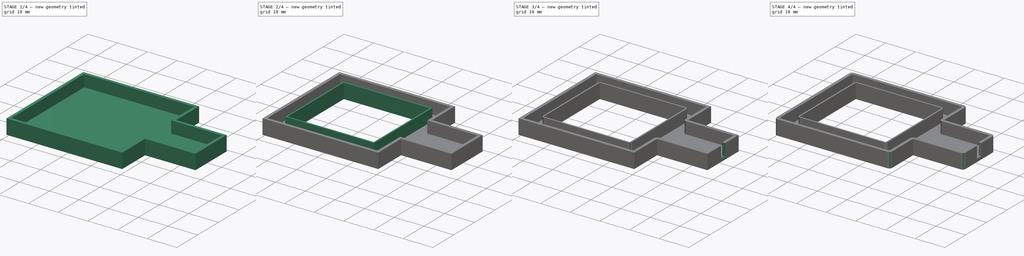
[diagram: build sequence overview — one tinted view per stage of 4, left to right]
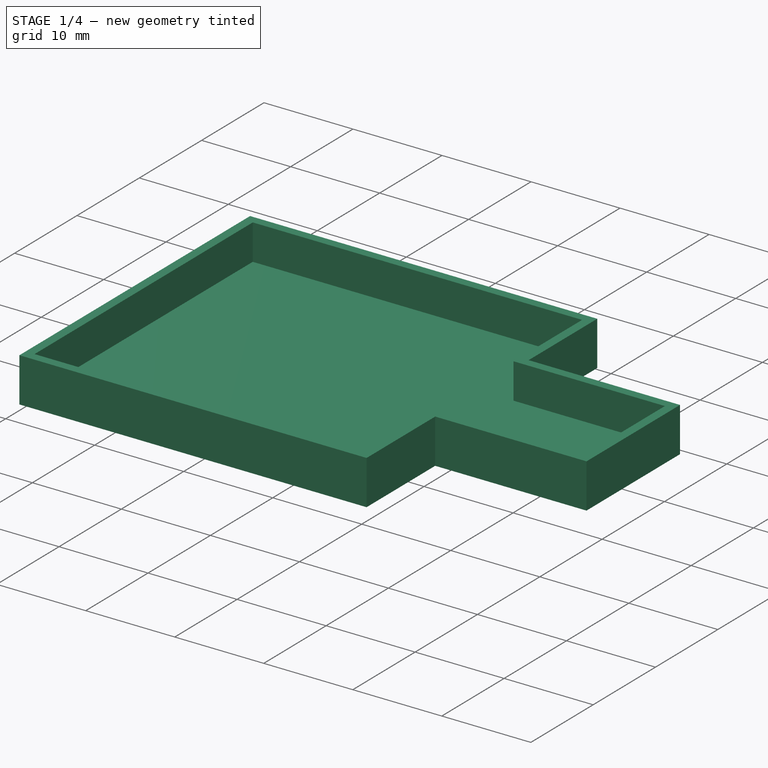
[diagram: stage 1 of 4 — iso view after this stage's code; geometry added in this stage tinted green]
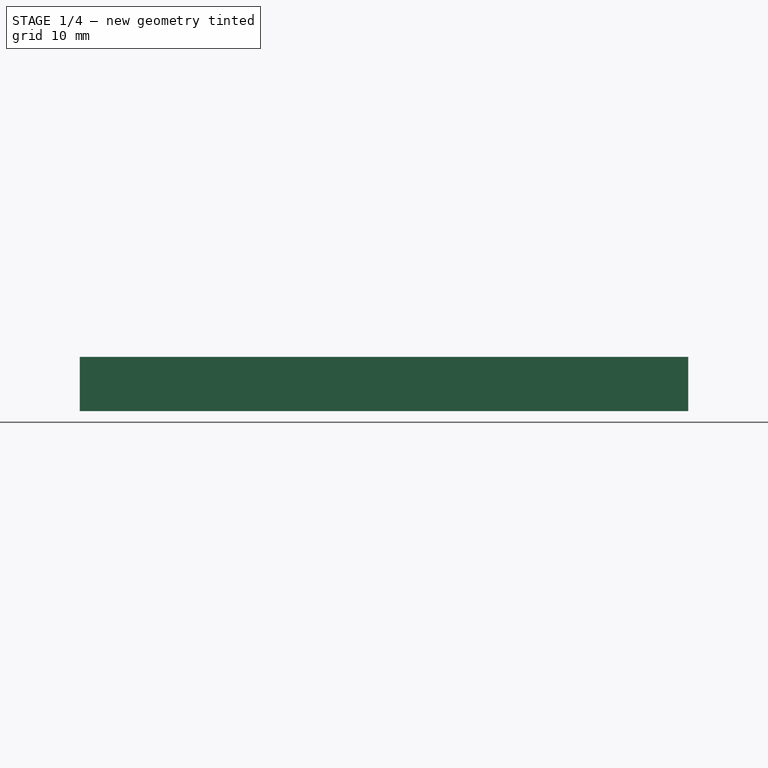
[diagram: stage 1 of 4 — front view after this stage's code; geometry added in this stage tinted green]
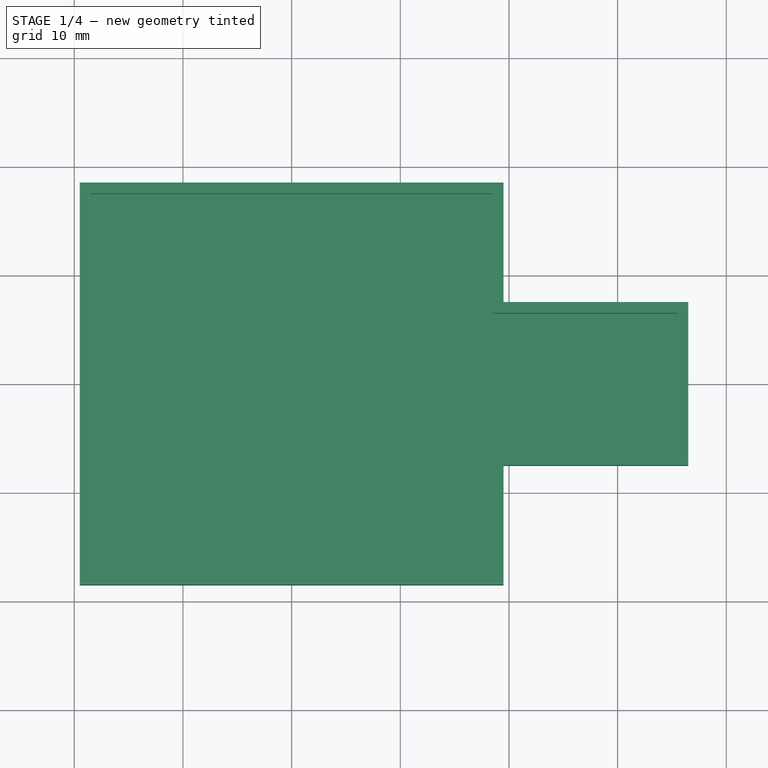
[diagram: stage 1 of 4 — top view after this stage's code; geometry added in this stage tinted green]
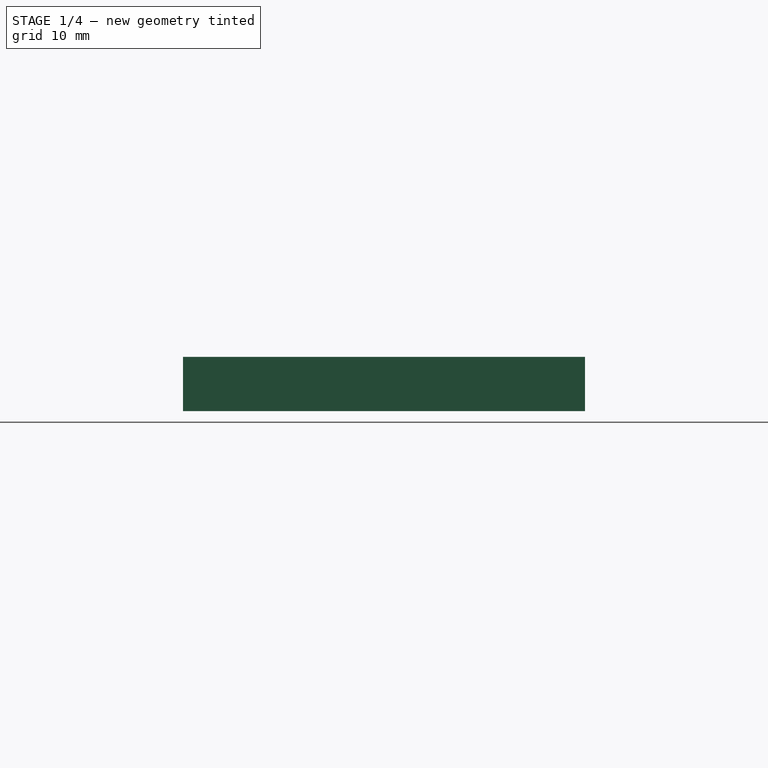
[diagram: stage 1 of 4 — right view after this stage's code; geometry added in this stage tinted green]
FCSTD DOCUMENT  (FreeCAD 0.19R24291 (Git))
Label: bruker7t_fus_single_rectangle_base3
License: All rights reserved
LicenseURL: http://en.wikipedia.org/wiki/All_rights_reserved
objects: Sketcher::SketchObject×5, PartDesign::Fillet×4, PartDesign::Pocket×3, PartDesign::Pad×2, PartDesign::Body×1
note: 24 computed .brp shape members not serialized (recipe doc carries the construction recipe); baked Part::Feature solids carry a one-line shape summary decoded from their .brp

FEATURE [Sketcher::SketchObject] Sketch
  FullyConstrained = true
  MapMode = 5
  Support = -> [XY_Plane]
  sketch-geometry (8):
    g0: LineSegment StartX=36.5 StartY=7.5 StartZ=0 EndX=19.5 EndY=7.5 EndZ=0
    g1: LineSegment StartX=19.5 StartY=7.5 StartZ=0 EndX=19.5 EndY=18.5 EndZ=0
    g2: LineSegment StartX=19.5 StartY=18.5 StartZ=0 EndX=-19.5 EndY=18.5 EndZ=0
    g3: LineSegment StartX=-19.5 StartY=18.5 StartZ=0 EndX=-19.5 EndY=-18.5 EndZ=0
    g4: LineSegment StartX=-19.5 StartY=-18.5 StartZ=0 EndX=19.5 EndY=-18.5 EndZ=0
    g5: LineSegment StartX=19.5 StartY=-18.5 StartZ=0 EndX=19.5 EndY=-7.5 EndZ=0
    g6: LineSegment StartX=19.5 StartY=-7.5 StartZ=0 EndX=36.5 EndY=-7.5 EndZ=0
    g7: LineSegment StartX=36.5 StartY=-7.5 StartZ=0 EndX=36.5 EndY=7.5 EndZ=0
  constraints (21):
    c: Horizontal(g0)
    c: Coincident(g0,g1)
    c: Vertical(g1)
    c: Coincident(g1,g2)
    c: Coincident(g2,g3)
    c: Coincident(g3,g4)
    c: Horizontal(g4)
    c: Coincident(g4,g5)
    c: Vertical(g5)
    c: Coincident(g5,g6)
    c: Horizontal(g6)
    c: Coincident(g6,g7)
    c: Coincident(g7,g0)
    c: Vertical(g7)
    c: Symmetric(g2,g3,g-1)
    c: Symmetric(g0,g5,g-1)
    c: DistanceX(g0,g0) = 17
    c: DistanceX(g2,g2) = 39
    c: DistanceY(g3,g3) = 37
    c: Symmetric(g1,g2,g-2)
    c: DistanceY(g0,g1) = 11
FEATURE [PartDesign::Pad] Pad
  Direction = (1,1,1)
  Length = 5
  Length2 = 100
  Profile = -> Sketch
  Refine = true
  Type = 0
FEATURE [Sketcher::SketchObject] Sketch001
  FullyConstrained = true
  MapMode = 5
  Support = -> [XY_Plane]
  sketch-geometry (4):
    g0: LineSegment StartX=-15 StartY=14 StartZ=0 EndX=15 EndY=14 EndZ=0
    g1: LineSegment StartX=15 StartY=14 StartZ=0 EndX=15 EndY=-14 EndZ=0
    g2: LineSegment StartX=15 StartY=-14 StartZ=0 EndX=-15 EndY=-14 EndZ=0
    g3: LineSegment StartX=-15 StartY=-14 StartZ=0 EndX=-15 EndY=14 EndZ=0
  constraints (10):
    c: Coincident(g0,g1)
    c: Coincident(g1,g2)
    c: Coincident(g2,g3)
    c: Coincident(g3,g0)
    c: Horizontal(g2)
    c: Vertical(g1)
    c: DistanceX(g0,g0) = 30
    c: DistanceY(g1,g1) = 28
    c: Symmetric(g0,g2,g-1)
    c: Symmetric(g0,g0,g-2)
FEATURE [Sketcher::SketchObject] Sketch002
  AttachmentOffset = pos=(0,0,1) rot=(0,0,1;0rad)
  ExternalGeometry = -> [Pad]
  FullyConstrained = true
  MapMode = 5
  Placement = pos=(0,0,1) rot=(0,0,1;0rad)
  Support = -> [XY_Plane]
  sketch-geometry (8):
    g0: LineSegment StartX=35.5 StartY=6.5 StartZ=0 EndX=18.5 EndY=6.5 EndZ=0
    g1: LineSegment StartX=18.5 StartY=6.5 StartZ=0 EndX=18.5 EndY=17.5 EndZ=0
    g2: LineSegment StartX=18.5 StartY=17.5 StartZ=0 EndX=-18.5 EndY=17.5 EndZ=0
    g3: LineSegment StartX=-18.5 StartY=17.5 StartZ=0 EndX=-18.5 EndY=-17.5 EndZ=0
    g4: LineSegment StartX=-18.5 StartY=-17.5 StartZ=0 EndX=18.5 EndY=-17.5 EndZ=0
    g5: LineSegment StartX=18.5 StartY=-17.5 StartZ=0 EndX=18.5 EndY=-6.5 EndZ=0
    g6: LineSegment StartX=18.5 StartY=-6.5 StartZ=0 EndX=35.5 EndY=-6.5 EndZ=0
    g7: LineSegment StartX=35.5 StartY=-6.5 StartZ=0 EndX=35.5 EndY=6.5 EndZ=0
  constraints (23):
    c: Horizontal(g0)
    c: Coincident(g0,g1)
    c: Vertical(g1)
    c: Coincident(g1,g2)
    c: Horizontal(g2)
    c: Coincident(g2,g3)
    c: Coincident(g3,g4)
    c: Horizontal(g4)
    c: Coincident(g4,g5)
    c: Vertical(g5)
    c: Coincident(g5,g6)
    c: Horizontal(g6)
    c: Coincident(g6,g7)
    c: Coincident(g0,g7)
    c: Vertical(g7)
    c: Equal(g1,g5)
    c: Symmetric(g3,g2,g-1)
    c: Equal(g4,g2)
    c: DistanceY(g0,g-4) = 1
    c: DistanceY(g1,g-4) = 1
    c: DistanceX(g0,g-4) = 1
    c: DistanceX(g-3,g2) = 1
    c: DistanceX(g0,g-5) = 1
FEATURE [PartDesign::Pocket] Pocket
  BaseFeature = -> Pad
  Length = 4
  Length2 = 100
  Profile = -> Sketch002
  Refine = true
  Reversed = true
  Type = 0
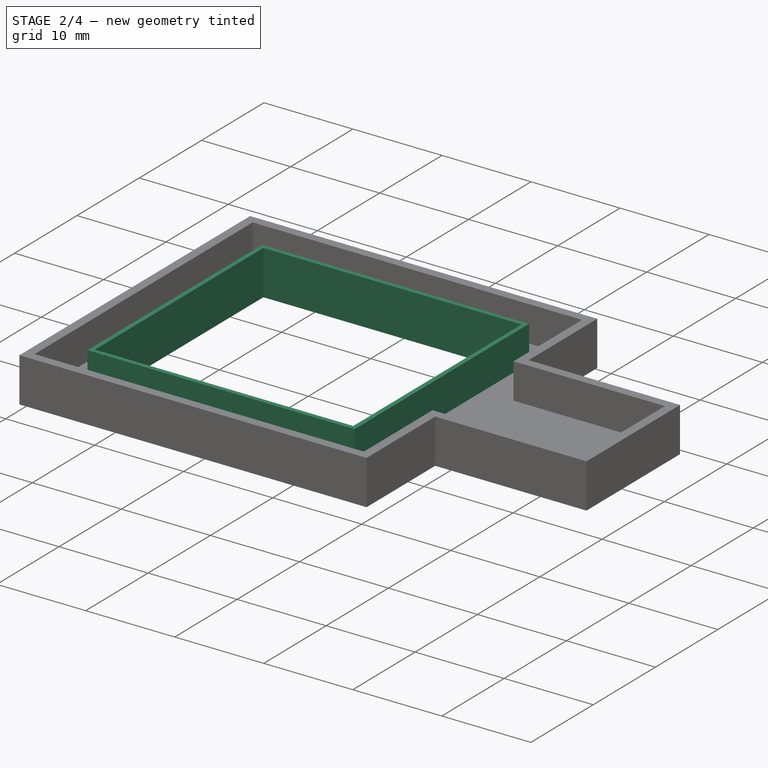
[diagram: stage 2 of 4 — iso view after this stage's code; geometry added in this stage tinted green]
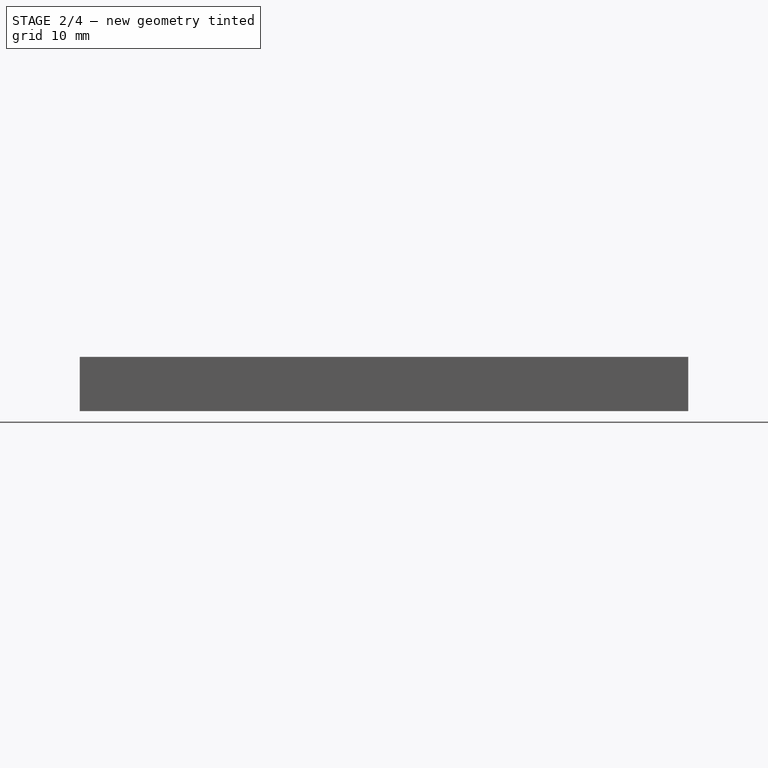
[diagram: stage 2 of 4 — front view after this stage's code; geometry added in this stage tinted green]
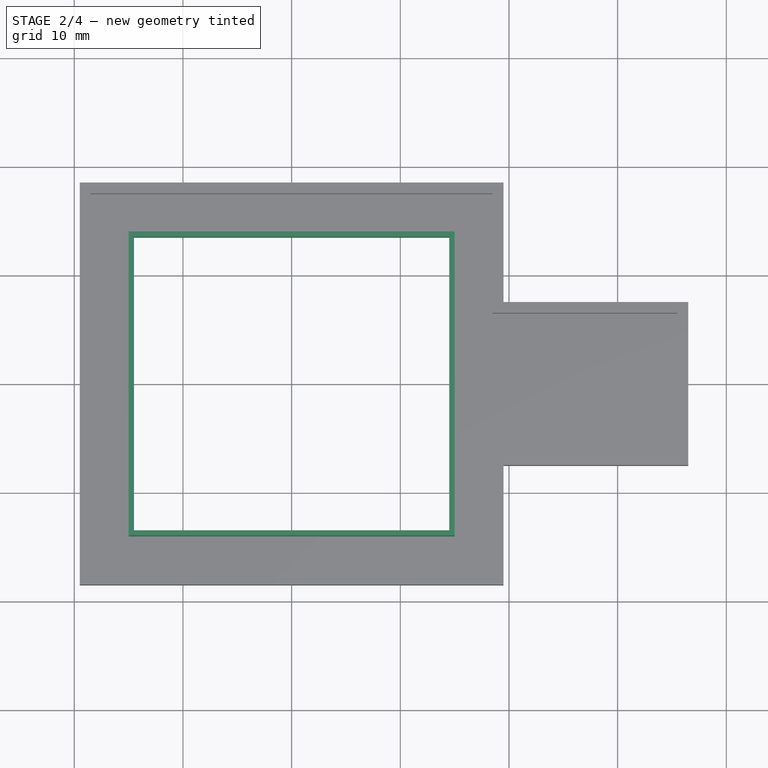
[diagram: stage 2 of 4 — top view after this stage's code; geometry added in this stage tinted green]
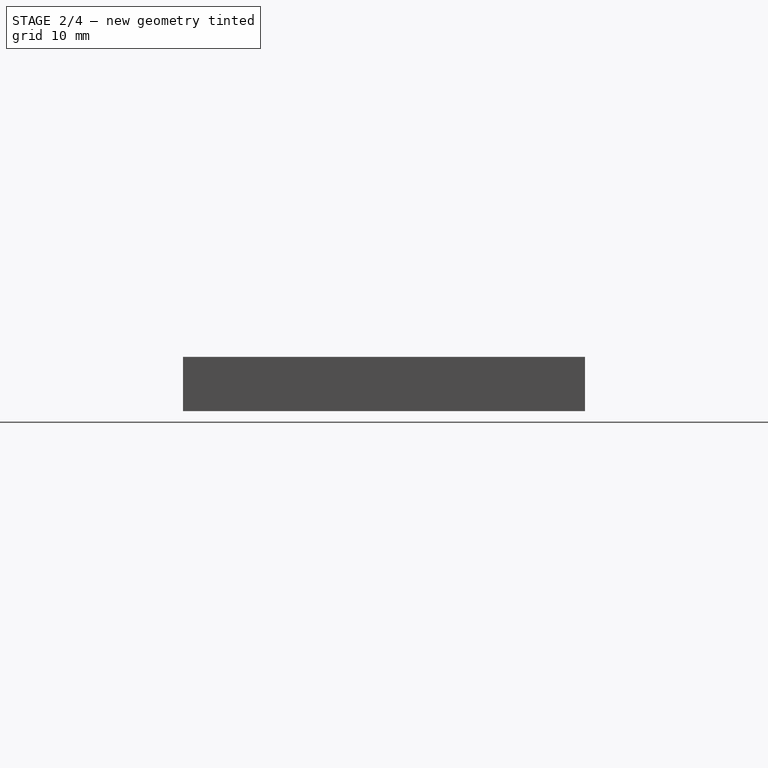
[diagram: stage 2 of 4 — right view after this stage's code; geometry added in this stage tinted green]
FEATURE [PartDesign::Pad] Pad001
  BaseFeature = -> Pocket
  Direction = (1,1,1)
  Length = 5
  Length2 = 100
  Profile = -> Sketch001
  Refine = true
  Type = 0
FEATURE [Sketcher::SketchObject] Sketch003
  FullyConstrained = true
  MapMode = 5
  Support = -> [XY_Plane]
  sketch-geometry (4):
    g0: LineSegment StartX=-14.5 StartY=-13.5 StartZ=0 EndX=14.5 EndY=-13.5 EndZ=0
    g1: LineSegment StartX=14.5 StartY=-13.5 StartZ=0 EndX=14.5 EndY=13.5 EndZ=0
    g2: LineSegment StartX=14.5 StartY=13.5 StartZ=0 EndX=-14.5 EndY=13.5 EndZ=0
    g3: LineSegment StartX=-14.5 StartY=13.5 StartZ=0 EndX=-14.5 EndY=-13.5 EndZ=0
  constraints (10):
    c: Coincident(g0,g1)
    c: Coincident(g1,g2)
    c: Coincident(g2,g3)
    c: Coincident(g3,g0)
    c: Horizontal(g2)
    c: Vertical(g1)
    c: DistanceX(g2,g2) = 29
    c: DistanceY(g1,g1) = 27
    c: Symmetric(g2,g0,g-1)
    c: Symmetric(g0,g0,g-2)
FEATURE [PartDesign::Pocket] Pocket001
  BaseFeature = -> Pad001
  Length = 5
  Length2 = 100
  Profile = -> Sketch003
  Refine = true
  Reversed = true
  Type = 0
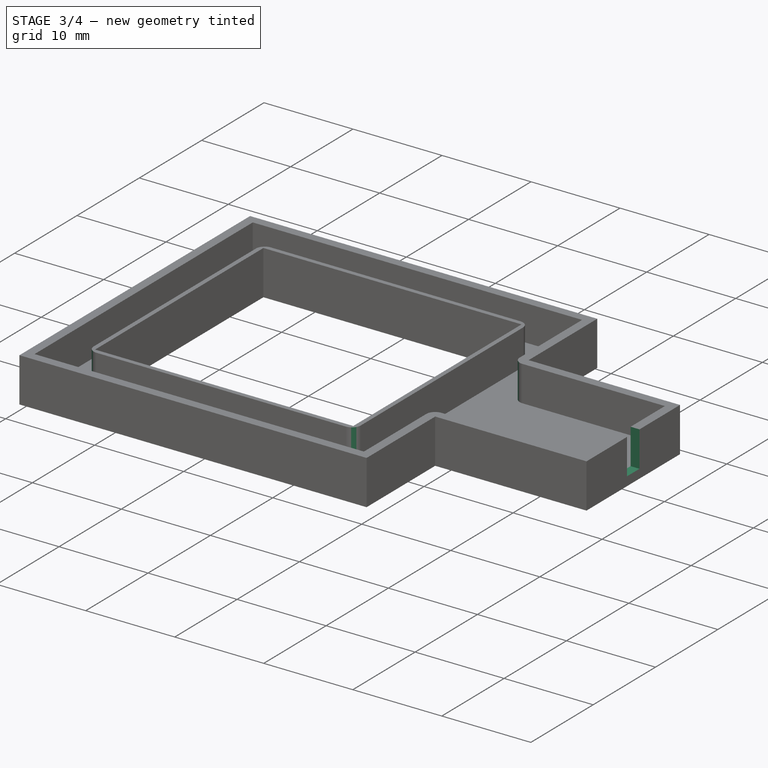
[diagram: stage 3 of 4 — iso view after this stage's code; geometry added in this stage tinted green]
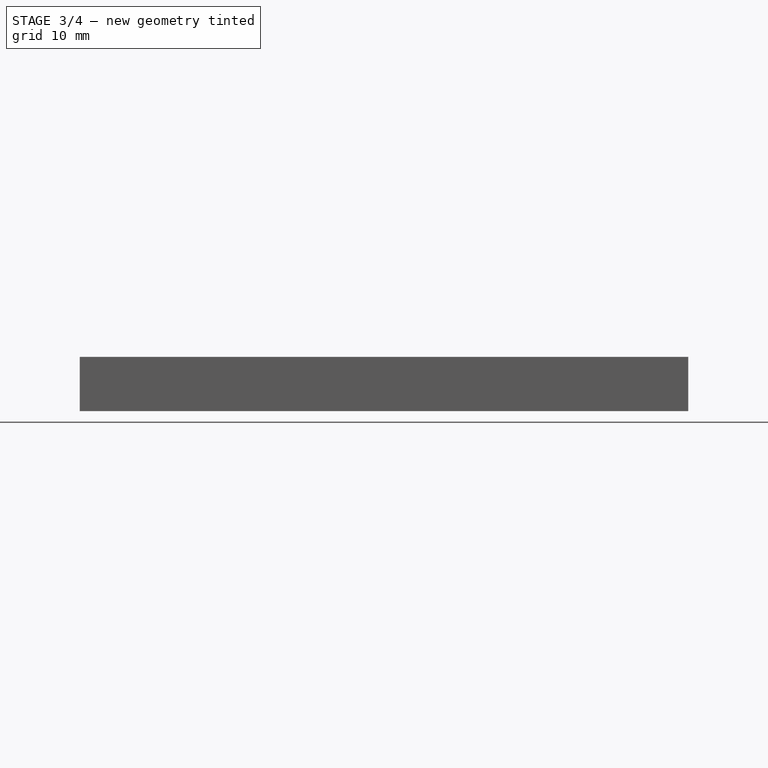
[diagram: stage 3 of 4 — front view after this stage's code; geometry added in this stage tinted green]
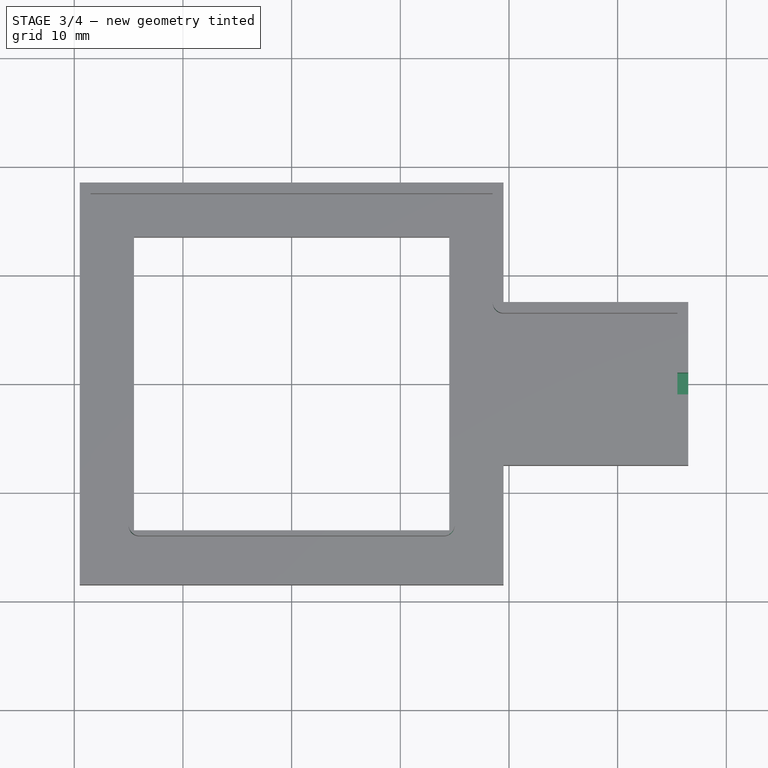
[diagram: stage 3 of 4 — top view after this stage's code; geometry added in this stage tinted green]
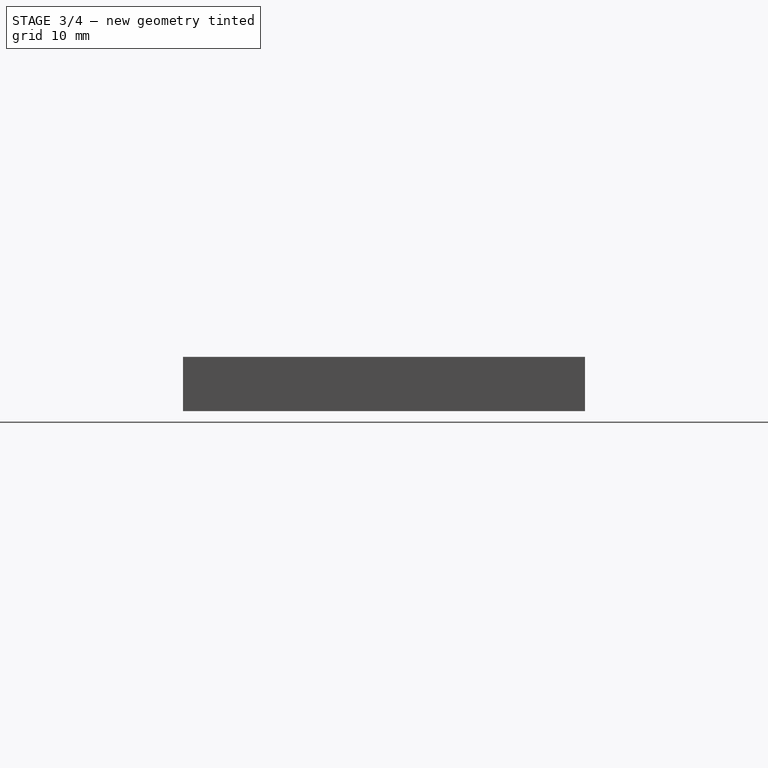
[diagram: stage 3 of 4 — right view after this stage's code; geometry added in this stage tinted green]
FEATURE [Sketcher::SketchObject] Sketch004
  AttachmentOffset = pos=(0,0,1) rot=(0,0,1;0rad)
  ExternalGeometry = -> [Pocket001]
  FullyConstrained = true
  MapMode = 5
  Placement = pos=(0,0,1) rot=(0,0,1;0rad)
  Support = -> [XY_Plane]
  sketch-geometry (4):
    g0: LineSegment StartX=34.5 StartY=1 StartZ=0 EndX=36.5 EndY=1 EndZ=0
    g1: LineSegment StartX=36.5 StartY=1 StartZ=0 EndX=36.5 EndY=-1 EndZ=0
    g2: LineSegment StartX=36.5 StartY=-1 StartZ=0 EndX=34.5 EndY=-1 EndZ=0
    g3: LineSegment StartX=34.5 StartY=-1 StartZ=0 EndX=34.5 EndY=1 EndZ=0
  constraints (11):
    c: Coincident(g0,g1)
    c: Coincident(g1,g2)
    c: Coincident(g2,g3)
    c: Coincident(g3,g0)
    c: Horizontal(g0)
    c: Horizontal(g2)
    c: Vertical(g1)
    c: DistanceX(g-3,g0) = 0
    c: DistanceX(g0,g0) = 2
    c: DistanceY(g3,g3) = 2
    c: Symmetric(g0,g2,g-1)
FEATURE [PartDesign::Pocket] Pocket002
  BaseFeature = -> Pocket001
  Length = 4
  Length2 = 100
  Profile = -> Sketch004
  Refine = true
  Reversed = true
  Type = 0
FEATURE [PartDesign::Fillet] Fillet
  Base = -> Pocket002 [Edge81,Edge83,Edge78,Edge79]
  BaseFeature = -> Pocket002
  Radius = 1
  Refine = true
  SupportTransform = false
FEATURE [PartDesign::Fillet] Fillet001
  Base = -> Fillet [Edge69,Edge79]
  BaseFeature = -> Fillet
  Radius = 1
  Refine = true
  SupportTransform = false
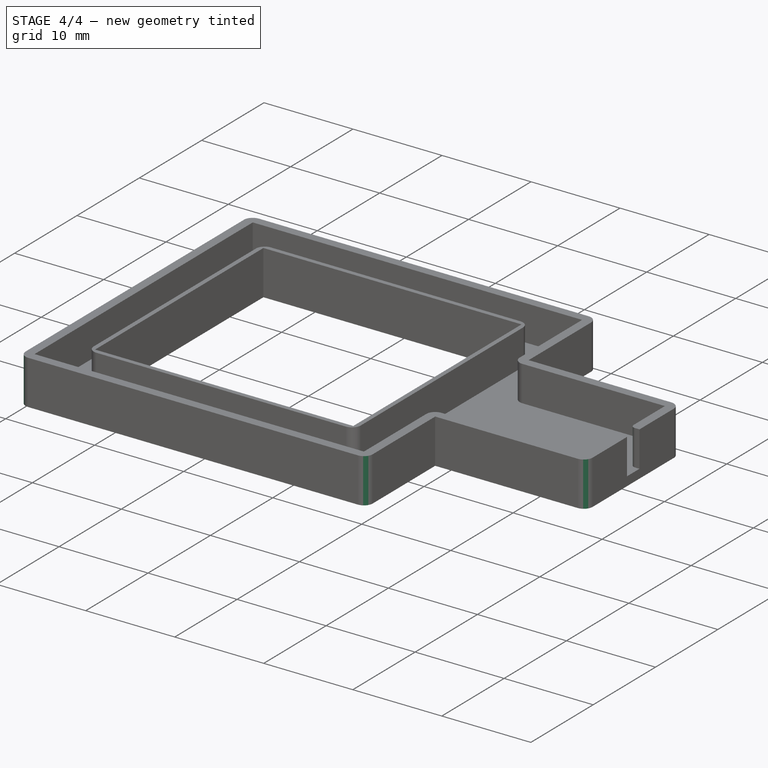
[diagram: stage 4 of 4 — iso view after this stage's code; geometry added in this stage tinted green]
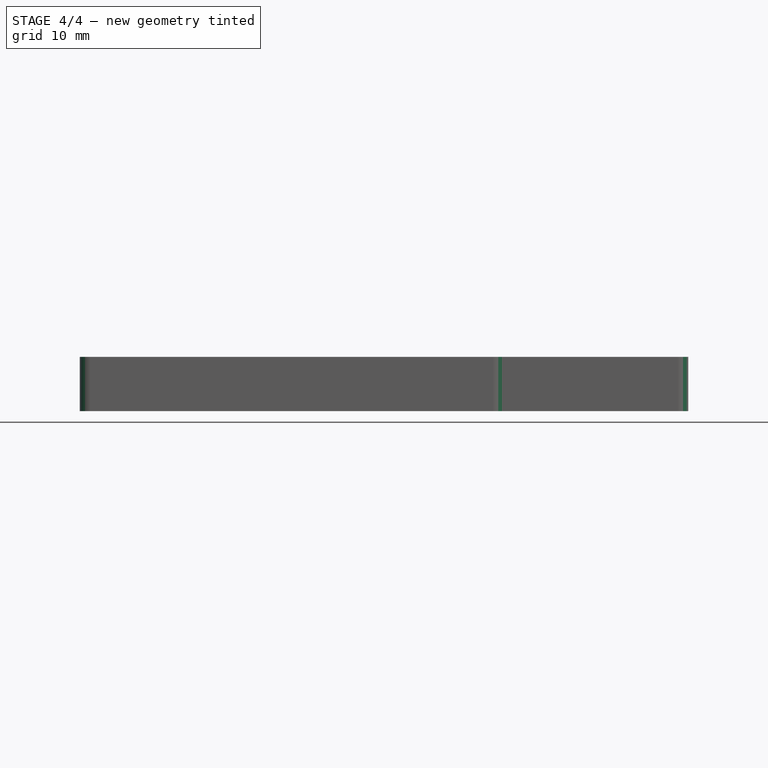
[diagram: stage 4 of 4 — front view after this stage's code; geometry added in this stage tinted green]
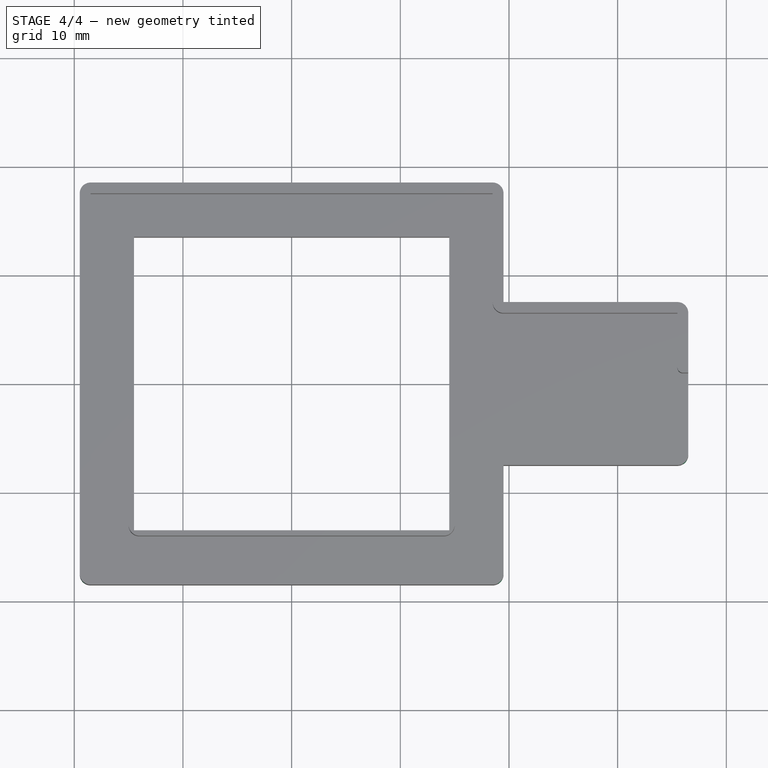
[diagram: stage 4 of 4 — top view after this stage's code; geometry added in this stage tinted green]
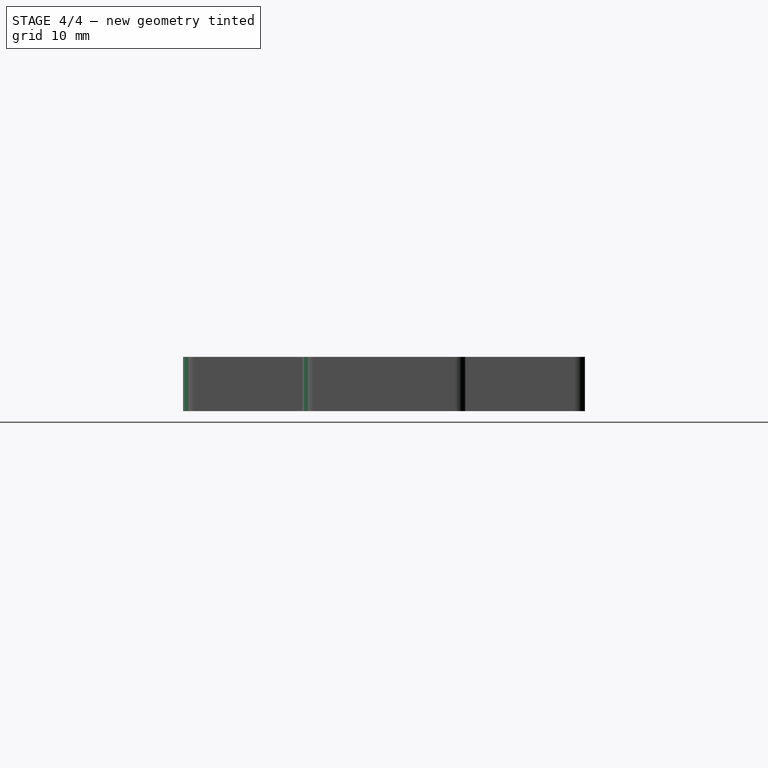
[diagram: stage 4 of 4 — right view after this stage's code; geometry added in this stage tinted green]
FEATURE [PartDesign::Fillet] Fillet002
  Base = -> Fillet001 [Edge96,Edge97,Edge95,Edge37,Edge41,Edge98]
  BaseFeature = -> Fillet001
  Radius = 1
  Refine = true
  SupportTransform = false
FEATURE [PartDesign::Fillet] Fillet003
  Base = -> Fillet002 [Edge55,Edge57]
  BaseFeature = -> Fillet002
  Radius = 0.5
  Refine = true
  SupportTransform = false
FEATURE [PartDesign::Body] Body
  Group = -> [Sketch,Pad,Pocket,Sketch002,Sketch001,Pad001,Sketch003,Pocket001,Sketch004,Pocket002,Fillet,Fillet001,Fillet002,Fillet003]
  Origin = -> Origin
  Tip = -> Fillet003
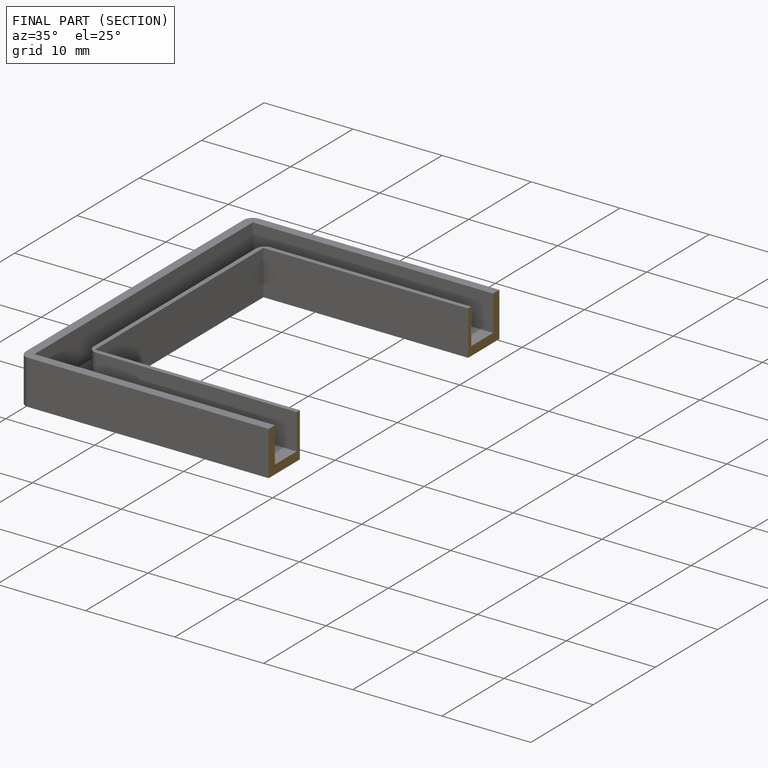
[diagram: finished part — half-section view (interior)]
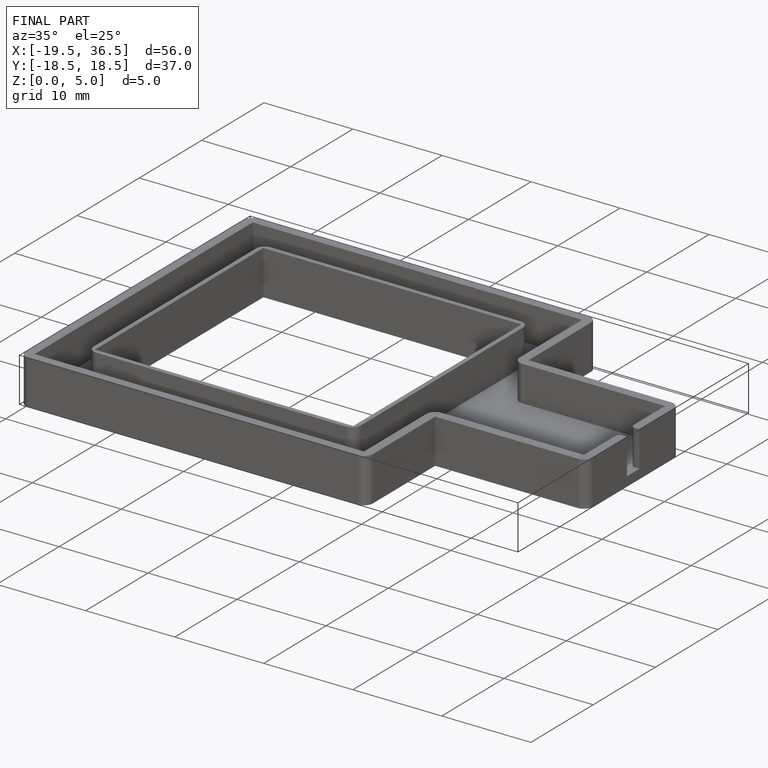
[diagram: finished part — iso view with bounding-box wireframe]
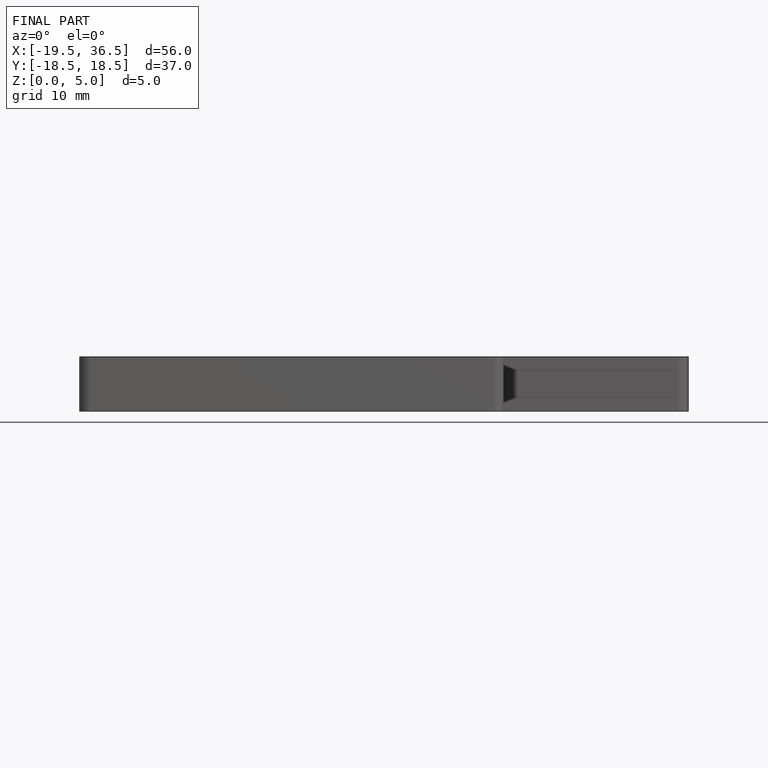
[diagram: finished part — front view with bounding-box wireframe]
